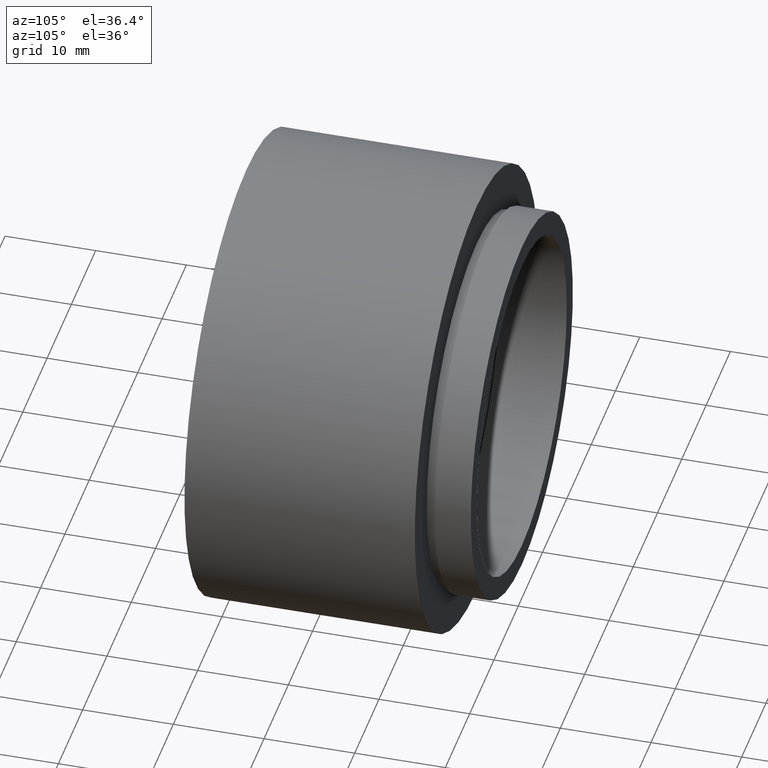
[diagram: clean part render]
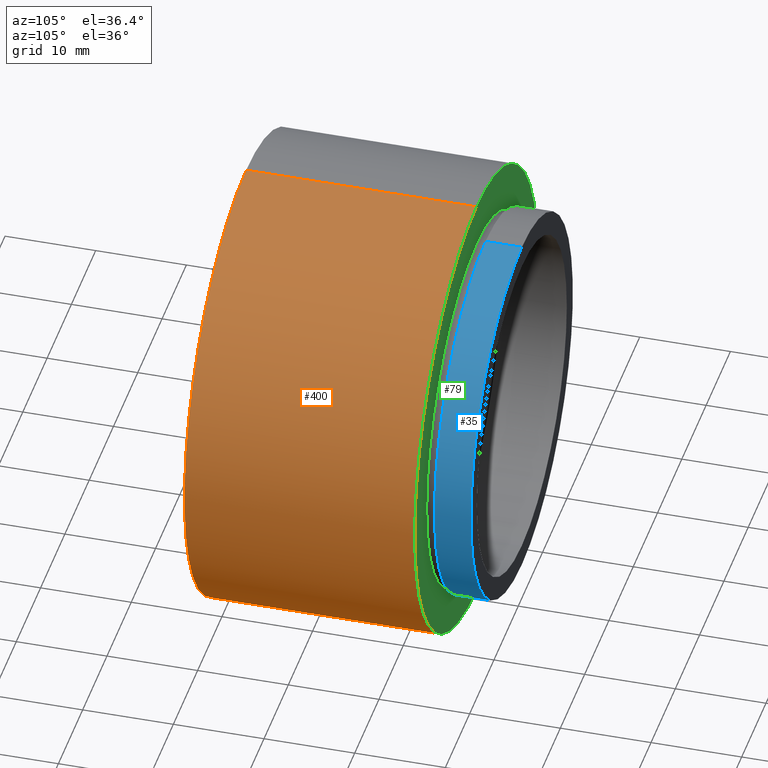
[diagram: same view with three faces highlighted in distinct colors, each labeled with its STEP entity id]
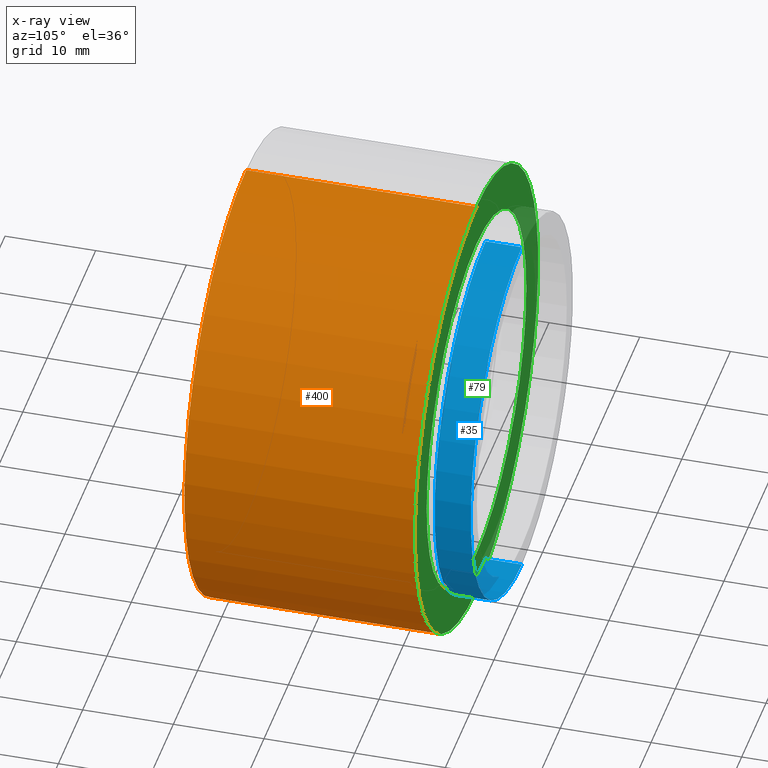
[diagram: x-ray of the same camera — body ghosted, the three highlighted faces saturated]
A machine part, auxiliary view with three faces highlighted in distinct colors.
The next image is the same camera in x-ray (body ghosted, the three faces saturated) — at least one of them is partly hidden behind the body in this view.
Their STEP definitions:

[orange] entity #400 — the highlighted cylindrical surface (partial cylindrical patch) has radius 25.4 mm, axis along (-0, 1, -0).
#4 = EDGE_CURVE ( 'NONE', #195, #379, #224, .T. ) ;
#88 = VERTEX_POINT ( 'NONE', #592 ) ;
#99 = LINE ( 'NONE', #140, #369 ) ;
#140 = CARTESIAN_POINT ( 'NONE',  ( 0.0000000000000000000, 161.3761669434274500, 25.40000000000001600 ) ) ;
#143 = DIRECTION ( 'NONE',  ( -0.0000000000000000000, 1.000000000000000000, -0.0000000000000000000 ) ) ;
#144 = DIRECTION ( 'NONE',  ( 0.0000000000000000000, 0.0000000000000000000, 1.000000000000000000 ) ) ;
#145 = LINE ( 'NONE', #411, #421 ) ;
#160 = AXIS2_PLACEMENT_3D ( 'NONE', #380, #434, #383 ) ;
#180 = CARTESIAN_POINT ( 'NONE',  ( 0.0000000000000000000, 25.39999999999997700, 25.40000000000001300 ) ) ;
#195 = VERTEX_POINT ( 'NONE', #180 ) ;
#218 = ORIENTED_EDGE ( 'NONE', *, *, #433, .T. ) ;
#224 = CIRCLE ( 'NONE', #160, 25.40000000000001300 ) ;
#230 = DIRECTION ( 'NONE',  ( -0.0000000000000000000, 1.000000000000000000, -0.0000000000000000000 ) ) ;
#235 = EDGE_CURVE ( 'NONE', #359, #379, #145, .T. ) ;
#258 = ORIENTED_EDGE ( 'NONE', *, *, #4, .F. ) ;
#276 = CARTESIAN_POINT ( 'NONE',  ( 3.110602869834279600E-015, -2.775557561562891400E-014, -25.40000000000002300 ) ) ;
#308 = EDGE_CURVE ( 'NONE', #88, #195, #99, .T. ) ;
#322 = CYLINDRICAL_SURFACE ( 'NONE', #470, 25.40000000000001600 ) ;
#332 = CARTESIAN_POINT ( 'NONE',  ( 0.0000000000000000000, -2.775557561562891400E-014, 0.0000000000000000000 ) ) ;
#359 = VERTEX_POINT ( 'NONE', #276 ) ;
#369 = VECTOR ( 'NONE', #230, 1000.000000000000000 ) ;
#375 = DIRECTION ( 'NONE',  ( -0.0000000000000000000, 1.000000000000000000, -0.0000000000000000000 ) ) ;
#379 = VERTEX_POINT ( 'NONE', #561 ) ;
#380 = CARTESIAN_POINT ( 'NONE',  ( 0.0000000000000000000, 25.39999999999997700, 0.0000000000000000000 ) ) ;
#383 = DIRECTION ( 'NONE',  ( 0.0000000000000000000, 0.0000000000000000000, 1.000000000000000000 ) ) ;
#400 = ADVANCED_FACE ( 'NONE', ( #590 ), #322, .T. ) ;
#411 = CARTESIAN_POINT ( 'NONE',  ( 3.110602869834278800E-015, 161.3761669434274500, -25.40000000000001600 ) ) ;
#421 = VECTOR ( 'NONE', #548, 1000.000000000000000 ) ;
#432 = ORIENTED_EDGE ( 'NONE', *, *, #308, .F. ) ;
#433 = EDGE_CURVE ( 'NONE', #88, #359, #452, .T. ) ;
#434 = DIRECTION ( 'NONE',  ( -0.0000000000000000000, 1.000000000000000000, -0.0000000000000000000 ) ) ;
#435 = AXIS2_PLACEMENT_3D ( 'NONE', #332, #143, #465 ) ;
#450 = EDGE_LOOP ( 'NONE', ( #218, #602, #258, #432 ) ) ;
#452 = CIRCLE ( 'NONE', #435, 25.40000000000002000 ) ;
#465 = DIRECTION ( 'NONE',  ( 0.0000000000000000000, 0.0000000000000000000, 1.000000000000000000 ) ) ;
#470 = AXIS2_PLACEMENT_3D ( 'NONE', #578, #375, #144 ) ;
#548 = DIRECTION ( 'NONE',  ( -0.0000000000000000000, 1.000000000000000000, -0.0000000000000000000 ) ) ;
#561 = CARTESIAN_POINT ( 'NONE',  ( 3.110602869834278800E-015, 25.39999999999997700, -25.40000000000001300 ) ) ;
#578 = CARTESIAN_POINT ( 'NONE',  ( 0.0000000000000000000, 161.3761669434274500, 0.0000000000000000000 ) ) ;
#590 = FACE_OUTER_BOUND ( 'NONE', #450, .T. ) ;
#592 = CARTESIAN_POINT ( 'NONE',  ( 0.0000000000000000000, -2.775557561562891400E-014, 25.40000000000002000 ) ) ;
#602 = ORIENTED_EDGE ( 'NONE', *, *, #235, .T. ) ;

[blue] entity #35 — the highlighted cylindrical surface (partial cylindrical patch) has radius 21 mm, axis along (-0, 1, -0).
#7 = VERTEX_POINT ( 'NONE', #16 ) ;
#9 = CIRCLE ( 'NONE', #212, 21.00000000000002100 ) ;
#16 = CARTESIAN_POINT ( 'NONE',  ( 2.571758278209444400E-015, 26.39999999999997700, -21.00000000000002100 ) ) ;
#19 = DIRECTION ( 'NONE',  ( -0.0000000000000000000, 1.000000000000000000, -0.0000000000000000000 ) ) ;
#24 = EDGE_CURVE ( 'NONE', #478, #398, #36, .T. ) ;
#25 = DIRECTION ( 'NONE',  ( -0.0000000000000000000, 1.000000000000000000, -0.0000000000000000000 ) ) ;
#35 = ADVANCED_FACE ( 'NONE', ( #203 ), #182, .T. ) ;
#36 = LINE ( 'NONE', #201, #154 ) ;
#64 = ORIENTED_EDGE ( 'NONE', *, *, #610, .F. ) ;
#85 = EDGE_CURVE ( 'NONE', #478, #7, #9, .T. ) ;
#104 = EDGE_CURVE ( 'NONE', #7, #495, #273, .T. ) ;
#115 = DIRECTION ( 'NONE',  ( -0.0000000000000000000, 1.000000000000000000, -0.0000000000000000000 ) ) ;
#121 = EDGE_LOOP ( 'NONE', ( #301, #365, #64, #469 ) ) ;
#126 = DIRECTION ( 'NONE',  ( -0.0000000000000000000, 1.000000000000000000, -0.0000000000000000000 ) ) ;
#151 = VECTOR ( 'NONE', #126, 1000.000000000000000 ) ;
#154 = VECTOR ( 'NONE', #19, 1000.000000000000000 ) ;
#182 = CYLINDRICAL_SURFACE ( 'NONE', #193, 21.00000000000001800 ) ;
#193 = AXIS2_PLACEMENT_3D ( 'NONE', #531, #399, #209 ) ;
#201 = CARTESIAN_POINT ( 'NONE',  ( 0.0000000000000000000, 161.3761669434274500, 21.00000000000001800 ) ) ;
#203 = FACE_OUTER_BOUND ( 'NONE', #121, .T. ) ;
#209 = DIRECTION ( 'NONE',  ( 0.0000000000000000000, 0.0000000000000000000, 1.000000000000000000 ) ) ;
#212 = AXIS2_PLACEMENT_3D ( 'NONE', #497, #25, #213 ) ;
#213 = DIRECTION ( 'NONE',  ( 0.0000000000000000000, 0.0000000000000000000, 1.000000000000000000 ) ) ;
#256 = CARTESIAN_POINT ( 'NONE',  ( 0.0000000000000000000, 30.39999999999998400, 0.0000000000000000000 ) ) ;
#273 = LINE ( 'NONE', #305, #151 ) ;
#301 = ORIENTED_EDGE ( 'NONE', *, *, #85, .T. ) ;
#305 = CARTESIAN_POINT ( 'NONE',  ( 2.571758278209444000E-015, 161.3761669434274500, -21.00000000000001800 ) ) ;
#365 = ORIENTED_EDGE ( 'NONE', *, *, #104, .T. ) ;
#374 = CARTESIAN_POINT ( 'NONE',  ( 0.0000000000000000000, 26.39999999999997700, 21.00000000000002100 ) ) ;
#398 = VERTEX_POINT ( 'NONE', #575 ) ;
#399 = DIRECTION ( 'NONE',  ( -0.0000000000000000000, 1.000000000000000000, -0.0000000000000000000 ) ) ;
#438 = DIRECTION ( 'NONE',  ( 0.0000000000000000000, 0.0000000000000000000, 1.000000000000000000 ) ) ;
#458 = CIRCLE ( 'NONE', #489, 21.00000000000001800 ) ;
#469 = ORIENTED_EDGE ( 'NONE', *, *, #24, .F. ) ;
#478 = VERTEX_POINT ( 'NONE', #374 ) ;
#489 = AXIS2_PLACEMENT_3D ( 'NONE', #256, #115, #438 ) ;
#495 = VERTEX_POINT ( 'NONE', #584 ) ;
#497 = CARTESIAN_POINT ( 'NONE',  ( 0.0000000000000000000, 26.39999999999997700, 0.0000000000000000000 ) ) ;
#531 = CARTESIAN_POINT ( 'NONE',  ( 0.0000000000000000000, 161.3761669434274500, 0.0000000000000000000 ) ) ;
#575 = CARTESIAN_POINT ( 'NONE',  ( 0.0000000000000000000, 30.39999999999998400, 21.00000000000001800 ) ) ;
#584 = CARTESIAN_POINT ( 'NONE',  ( 2.571758278209444000E-015, 30.39999999999998400, -21.00000000000001800 ) ) ;
#610 = EDGE_CURVE ( 'NONE', #398, #495, #458, .T. ) ;

[green] entity #79 — the highlighted planar face has unit normal (0, -1, 0).
#4 = EDGE_CURVE ( 'NONE', #195, #379, #224, .T. ) ;
#41 = ORIENTED_EDGE ( 'NONE', *, *, #410, .F. ) ;
#57 = DIRECTION ( 'NONE',  ( -0.0000000000000000000, 1.000000000000000000, -0.0000000000000000000 ) ) ;
#79 = ADVANCED_FACE ( 'NONE', ( #346, #595 ), #168, .F. ) ;
#160 = AXIS2_PLACEMENT_3D ( 'NONE', #380, #434, #383 ) ;
#164 = DIRECTION ( 'NONE',  ( 0.0000000000000000000, -0.0000000000000000000, -1.000000000000000000 ) ) ;
#167 = CIRCLE ( 'NONE', #603, 25.40000000000001300 ) ;
#168 = PLANE ( 'NONE',  #524 ) ;
#180 = CARTESIAN_POINT ( 'NONE',  ( 0.0000000000000000000, 25.39999999999997700, 25.40000000000001300 ) ) ;
#185 = CARTESIAN_POINT ( 'NONE',  ( 0.0000000000000000000, 25.39999999999997700, 0.0000000000000000000 ) ) ;
#189 = DIRECTION ( 'NONE',  ( 0.0000000000000000000, 0.0000000000000000000, 1.000000000000000000 ) ) ;
#192 = CARTESIAN_POINT ( 'NONE',  ( 0.0000000000000000000, 25.39999999999997700, 0.0000000000000000000 ) ) ;
#195 = VERTEX_POINT ( 'NONE', #180 ) ;
#198 = EDGE_LOOP ( 'NONE', ( #324, #607 ) ) ;
#199 = CIRCLE ( 'NONE', #587, 20.50000000000001400 ) ;
#211 = ORIENTED_EDGE ( 'NONE', *, *, #394, .F. ) ;
#215 = VERTEX_POINT ( 'NONE', #499 ) ;
#224 = CIRCLE ( 'NONE', #160, 25.40000000000001300 ) ;
#232 = DIRECTION ( 'NONE',  ( -0.0000000000000000000, 1.000000000000000000, -0.0000000000000000000 ) ) ;
#234 = EDGE_LOOP ( 'NONE', ( #41, #211 ) ) ;
#324 = ORIENTED_EDGE ( 'NONE', *, *, #4, .T. ) ;
#330 = DIRECTION ( 'NONE',  ( 0.0000000000000000000, 0.0000000000000000000, 1.000000000000000000 ) ) ;
#333 = CARTESIAN_POINT ( 'NONE',  ( 0.0000000000000000000, 25.39999999999997700, 0.0000000000000000000 ) ) ;
#335 = EDGE_CURVE ( 'NONE', #379, #195, #167, .T. ) ;
#346 = FACE_BOUND ( 'NONE', #234, .T. ) ;
#371 = VERTEX_POINT ( 'NONE', #415 ) ;
#379 = VERTEX_POINT ( 'NONE', #561 ) ;
#380 = CARTESIAN_POINT ( 'NONE',  ( 0.0000000000000000000, 25.39999999999997700, 0.0000000000000000000 ) ) ;
#383 = DIRECTION ( 'NONE',  ( 0.0000000000000000000, 0.0000000000000000000, 1.000000000000000000 ) ) ;
#394 = EDGE_CURVE ( 'NONE', #215, #371, #199, .T. ) ;
#410 = EDGE_CURVE ( 'NONE', #371, #215, #436, .T. ) ;
#415 = CARTESIAN_POINT ( 'NONE',  ( 0.0000000000000000000, 25.39999999999997700, 20.50000000000001400 ) ) ;
#434 = DIRECTION ( 'NONE',  ( -0.0000000000000000000, 1.000000000000000000, -0.0000000000000000000 ) ) ;
#436 = CIRCLE ( 'NONE', #456, 20.50000000000001400 ) ;
#437 = CARTESIAN_POINT ( 'NONE',  ( 20.50000000000001400, 25.39999999999998100, 0.0000000000000000000 ) ) ;
#456 = AXIS2_PLACEMENT_3D ( 'NONE', #333, #468, #518 ) ;
#468 = DIRECTION ( 'NONE',  ( -0.0000000000000000000, 1.000000000000000000, -0.0000000000000000000 ) ) ;
#499 = CARTESIAN_POINT ( 'NONE',  ( 2.510525938252075700E-015, 25.39999999999997700, -20.50000000000001400 ) ) ;
#518 = DIRECTION ( 'NONE',  ( 0.0000000000000000000, 0.0000000000000000000, 1.000000000000000000 ) ) ;
#524 = AXIS2_PLACEMENT_3D ( 'NONE', #437, #539, #164 ) ;
#539 = DIRECTION ( 'NONE',  ( 0.0000000000000000000, -1.000000000000000000, 0.0000000000000000000 ) ) ;
#561 = CARTESIAN_POINT ( 'NONE',  ( 3.110602869834278800E-015, 25.39999999999997700, -25.40000000000001300 ) ) ;
#587 = AXIS2_PLACEMENT_3D ( 'NONE', #192, #57, #330 ) ;
#595 = FACE_OUTER_BOUND ( 'NONE', #198, .T. ) ;
#603 = AXIS2_PLACEMENT_3D ( 'NONE', #185, #232, #189 ) ;
#607 = ORIENTED_EDGE ( 'NONE', *, *, #335, .T. ) ;